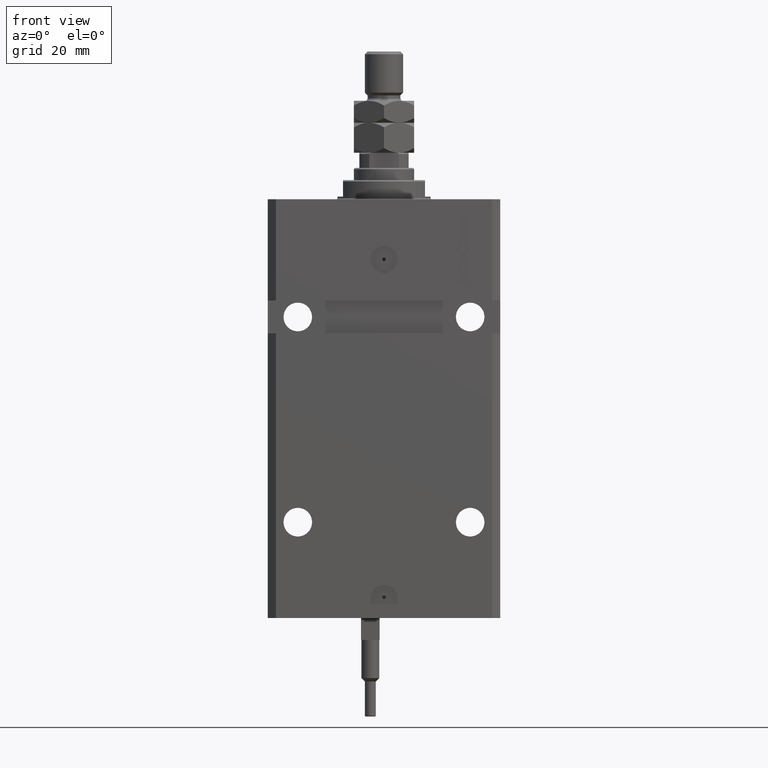
[diagram: clean part render]
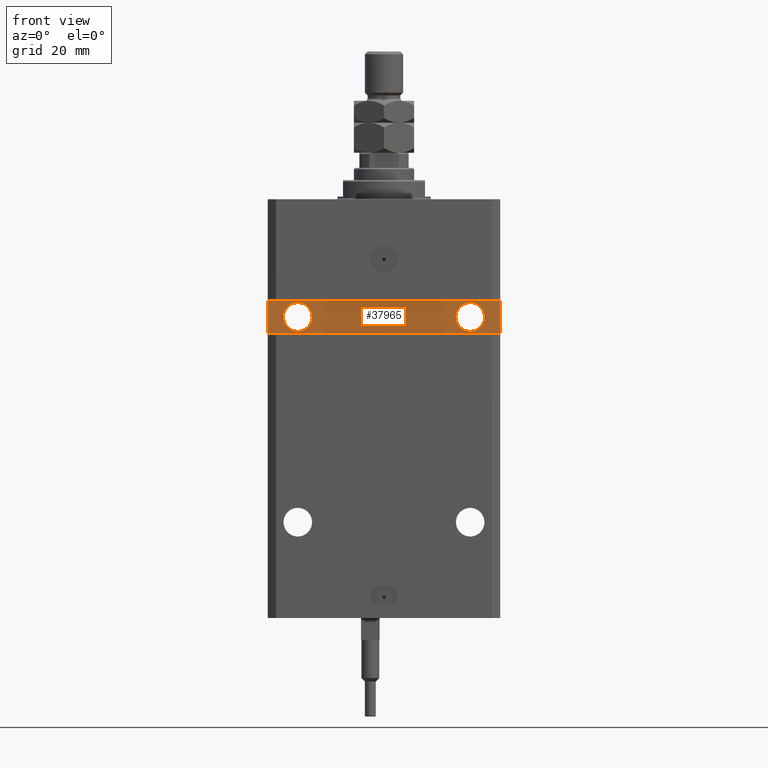
[diagram: same view with one face highlighted and labeled with its STEP entity id]
A machine part, front view. The second image highlights one B-rep face of the part: STEP entity #37965.
In plain terms, the highlighted planar face has unit normal (0, -1, 0).
Its self-contained STEP definition (entity closure, byte-faithful):
#1303 = CIRCLE ( 'NONE', #7076, 5.249999999999997335 ) ;
#1558 = DIRECTION ( 'NONE',  ( 0.000000000000000000, 0.000000000000000000, -1.000000000000000000 ) ) ;
#1646 = DIRECTION ( 'NONE',  ( 1.000000000000000000, 0.000000000000000000, 0.000000000000000000 ) ) ;
#3212 = EDGE_CURVE ( 'NONE', #49822, #27466, #1303, .T. ) ;
#3299 = PLANE ( 'NONE',  #32750 ) ;
#3359 = CARTESIAN_POINT ( 'NONE',  ( 31.50000000000001421, -28.49999999999999645, -43.00000000000000000 ) ) ;
#4182 = ORIENTED_EDGE ( 'NONE', *, *, #7921, .T. ) ;
#4638 = VECTOR ( 'NONE', #39989, 1000.000000000000000 ) ;
#6974 = VERTEX_POINT ( 'NONE', #30549 ) ;
#7076 = AXIS2_PLACEMENT_3D ( 'NONE', #24740, #37634, #49234 ) ;
#7228 = VERTEX_POINT ( 'NONE', #27115 ) ;
#7921 = EDGE_CURVE ( 'NONE', #17022, #6974, #24249, .T. ) ;
#8336 = DIRECTION ( 'NONE',  ( 1.000000000000000000, 0.000000000000000000, 0.000000000000000000 ) ) ;
#11949 = DIRECTION ( 'NONE',  ( 1.037025423586453576E-16, -1.000000000000000000, 0.000000000000000000 ) ) ;
#12489 = CARTESIAN_POINT ( 'NONE',  ( 42.50000000000001421, -28.49999999999999289, -37.00000000000000000 ) ) ;
#12762 = EDGE_LOOP ( 'NONE', ( #4182, #23970, #16882, #38011 ) ) ;
#12892 = VERTEX_POINT ( 'NONE', #25185 ) ;
#13286 = EDGE_CURVE ( 'NONE', #15176, #15562, #47832, .T. ) ;
#13468 = ORIENTED_EDGE ( 'NONE', *, *, #48454, .F. ) ;
#13515 = DIRECTION ( 'NONE',  ( 1.101411730780568590E-16, -1.000000000000000000, 0.000000000000000000 ) ) ;
#13946 = VECTOR ( 'NONE', #28234, 1000.000000000000000 ) ;
#14400 = DIRECTION ( 'NONE',  ( 0.000000000000000000, 0.000000000000000000, 1.000000000000000000 ) ) ;
#15176 = VERTEX_POINT ( 'NONE', #33350 ) ;
#15562 = VERTEX_POINT ( 'NONE', #22940 ) ;
#15739 = DIRECTION ( 'NONE',  ( 1.037025423586453576E-16, -1.000000000000000000, 0.000000000000000000 ) ) ;
#15988 = DIRECTION ( 'NONE',  ( 1.000000000000000000, 0.000000000000000000, 0.000000000000000000 ) ) ;
#16882 = ORIENTED_EDGE ( 'NONE', *, *, #13286, .T. ) ;
#17022 = VERTEX_POINT ( 'NONE', #21057 ) ;
#18562 = CIRCLE ( 'NONE', #35862, 5.249999999999997335 ) ;
#19581 = AXIS2_PLACEMENT_3D ( 'NONE', #39799, #11949, #8336 ) ;
#20251 = ORIENTED_EDGE ( 'NONE', *, *, #3212, .F. ) ;
#21057 = CARTESIAN_POINT ( 'NONE',  ( -42.50000000000001421, -28.50000000000000711, -48.99999999999999289 ) ) ;
#21608 = EDGE_CURVE ( 'NONE', #27466, #49822, #36471, .T. ) ;
#21638 = AXIS2_PLACEMENT_3D ( 'NONE', #21758, #13515, #1646 ) ;
#21758 = CARTESIAN_POINT ( 'NONE',  ( -31.49999999999998579, -28.50000000000000355, -43.00000000000000000 ) ) ;
#22903 = CARTESIAN_POINT ( 'NONE',  ( 4.790119779726142858E-15, -28.50000000000000000, 0.000000000000000000 ) ) ;
#22940 = CARTESIAN_POINT ( 'NONE',  ( -42.50000000000001421, -28.50000000000000711, -37.00000000000000711 ) ) ;
#23149 = DIRECTION ( 'NONE',  ( 1.632680918566406054E-16, -1.000000000000000000, 0.000000000000000000 ) ) ;
#23822 = CARTESIAN_POINT ( 'NONE',  ( -36.74999999999998579, -28.50000000000000355, -43.00000000000000000 ) ) ;
#23970 = ORIENTED_EDGE ( 'NONE', *, *, #46581, .T. ) ;
#24249 = LINE ( 'NONE', #35622, #4638 ) ;
#24740 = CARTESIAN_POINT ( 'NONE',  ( -31.49999999999998579, -28.50000000000000355, -43.00000000000000000 ) ) ;
#25185 = CARTESIAN_POINT ( 'NONE',  ( 36.75000000000001421, -28.49999999999999645, -43.00000000000000000 ) ) ;
#25624 = EDGE_CURVE ( 'NONE', #15562, #17022, #29434, .T. ) ;
#27115 = CARTESIAN_POINT ( 'NONE',  ( 26.25000000000001776, -28.49999999999999645, -43.00000000000000000 ) ) ;
#27466 = VERTEX_POINT ( 'NONE', #23822 ) ;
#27927 = CARTESIAN_POINT ( 'NONE',  ( -26.24999999999998934, -28.50000000000000355, -43.00000000000000000 ) ) ;
#28109 = EDGE_LOOP ( 'NONE', ( #20251, #45373 ) ) ;
#28234 = DIRECTION ( 'NONE',  ( -1.000000000000000000, -1.632680918566406054E-16, -8.163404592832030268E-17 ) ) ;
#29434 = LINE ( 'NONE', #36902, #42282 ) ;
#30549 = CARTESIAN_POINT ( 'NONE',  ( 42.50000000000001421, -28.49999999999999289, -48.99999999999997868 ) ) ;
#31662 = FACE_BOUND ( 'NONE', #40593, .T. ) ;
#32750 = AXIS2_PLACEMENT_3D ( 'NONE', #22903, #23149, #38884 ) ;
#33350 = CARTESIAN_POINT ( 'NONE',  ( 42.50000000000001421, -28.49999999999999289, -37.00000000000000000 ) ) ;
#34272 = CARTESIAN_POINT ( 'NONE',  ( 42.50000000000001421, -28.49999999999999289, -48.99999999999997868 ) ) ;
#34837 = EDGE_CURVE ( 'NONE', #12892, #7228, #47592, .T. ) ;
#35622 = CARTESIAN_POINT ( 'NONE',  ( -42.50000000000001421, -28.50000000000000711, -48.99999999999999289 ) ) ;
#35862 = AXIS2_PLACEMENT_3D ( 'NONE', #3359, #15739, #15988 ) ;
#36471 = CIRCLE ( 'NONE', #21638, 5.249999999999997335 ) ;
#36902 = CARTESIAN_POINT ( 'NONE',  ( -42.50000000000001421, -28.50000000000000711, -37.00000000000000711 ) ) ;
#37412 = VECTOR ( 'NONE', #14400, 1000.000000000000000 ) ;
#37634 = DIRECTION ( 'NONE',  ( 1.101411730780568590E-16, -1.000000000000000000, 0.000000000000000000 ) ) ;
#37877 = LINE ( 'NONE', #34272, #37412 ) ;
#37965 = ADVANCED_FACE ( 'NONE', ( #31662, #39646, #39402 ), #3299, .T. ) ;
#38011 = ORIENTED_EDGE ( 'NONE', *, *, #25624, .T. ) ;
#38884 = DIRECTION ( 'NONE',  ( 1.000000000000000000, 1.632680918566406054E-16, 0.000000000000000000 ) ) ;
#39402 = FACE_OUTER_BOUND ( 'NONE', #12762, .T. ) ;
#39646 = FACE_BOUND ( 'NONE', #28109, .T. ) ;
#39799 = CARTESIAN_POINT ( 'NONE',  ( 31.50000000000001421, -28.49999999999999645, -43.00000000000000000 ) ) ;
#39989 = DIRECTION ( 'NONE',  ( 1.000000000000000000, 1.632680918566406054E-16, 1.632680918566406054E-16 ) ) ;
#40593 = EDGE_LOOP ( 'NONE', ( #42114, #13468 ) ) ;
#42114 = ORIENTED_EDGE ( 'NONE', *, *, #34837, .F. ) ;
#42282 = VECTOR ( 'NONE', #1558, 1000.000000000000000 ) ;
#45373 = ORIENTED_EDGE ( 'NONE', *, *, #21608, .F. ) ;
#46581 = EDGE_CURVE ( 'NONE', #6974, #15176, #37877, .T. ) ;
#47592 = CIRCLE ( 'NONE', #19581, 5.249999999999997335 ) ;
#47832 = LINE ( 'NONE', #12489, #13946 ) ;
#48454 = EDGE_CURVE ( 'NONE', #7228, #12892, #18562, .T. ) ;
#49234 = DIRECTION ( 'NONE',  ( 1.000000000000000000, 0.000000000000000000, 0.000000000000000000 ) ) ;
#49822 = VERTEX_POINT ( 'NONE', #27927 ) ;